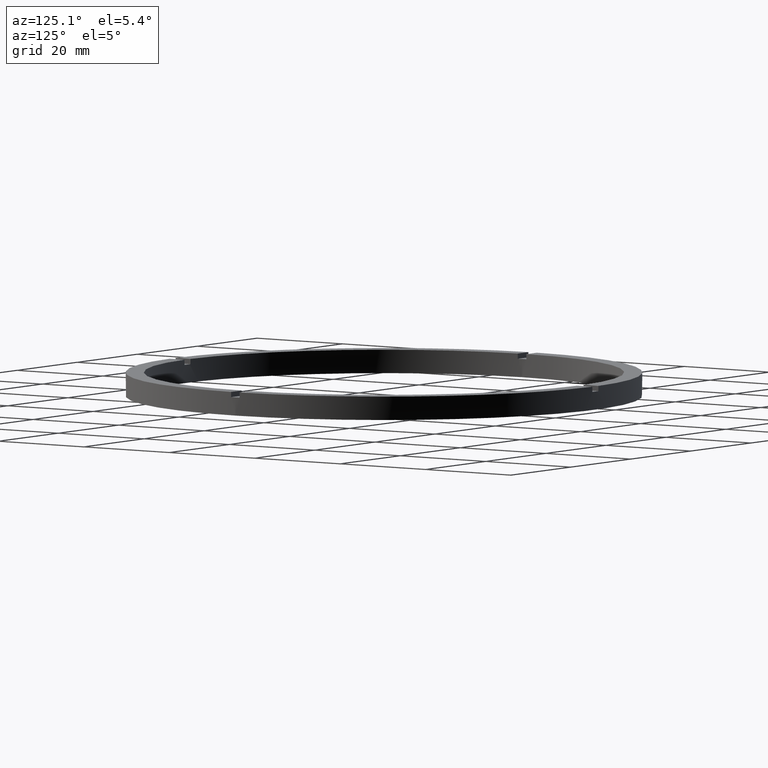
[diagram: clean part render]
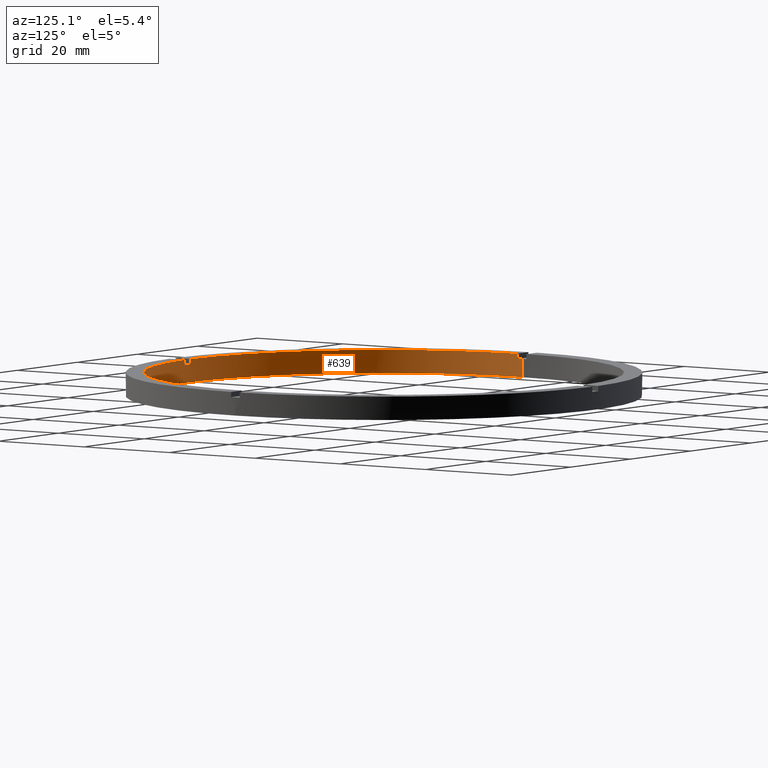
[diagram: same view with one face highlighted and labeled with its STEP entity id]
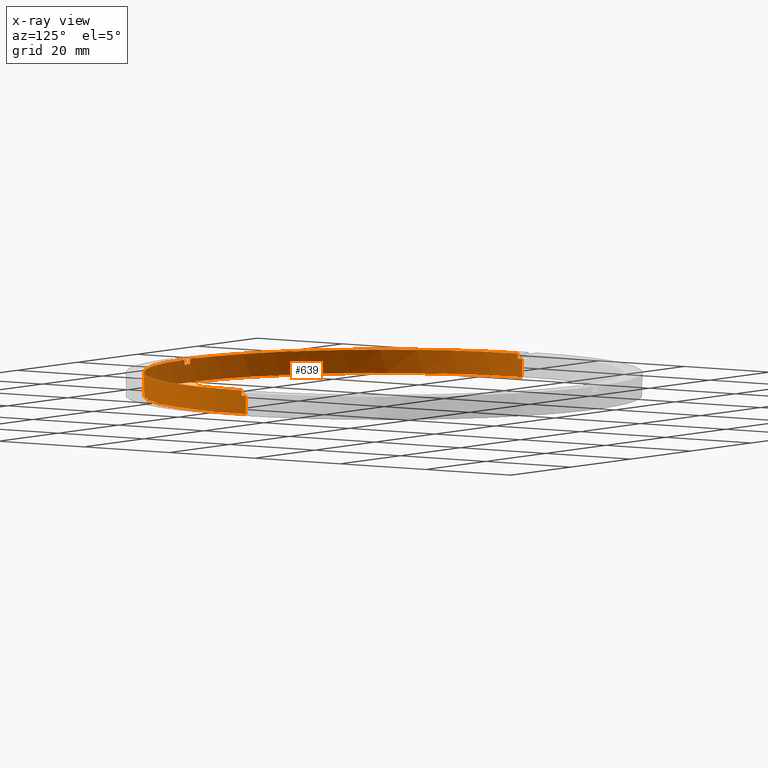
[diagram: x-ray of the same camera — body ghosted, the highlighted face saturated]
A machine part, auxiliary view. The second image highlights one B-rep face of the part: STEP entity #639.
The next image is the same camera in x-ray: the body ghosted, the highlighted face saturated — about 0% of this face is hidden behind the body in this view.
In plain terms, the highlighted cylindrical surface (partial cylindrical patch) has radius 46 mm, axis along (-0, -0, -1).
Its self-contained STEP definition (entity closure, byte-faithful):
#10 = ORIENTED_EDGE ( 'NONE', *, *, #93, .T. ) ;
#11 = CARTESIAN_POINT ( 'NONE',  ( 0.9999999999998425704, -45.98912915026767934, 4.500000000000000000 ) ) ;
#12 = ORIENTED_EDGE ( 'NONE', *, *, #126, .F. ) ;
#33 = ORIENTED_EDGE ( 'NONE', *, *, #410, .F. ) ;
#36 = CIRCLE ( 'NONE', #434, 46.00000000000000000 ) ;
#38 = LINE ( 'NONE', #406, #581 ) ;
#58 = FACE_OUTER_BOUND ( 'NONE', #261, .T. ) ;
#76 = CARTESIAN_POINT ( 'NONE',  ( 0.000000000000000000, 0.000000000000000000, 3.499999999999999556 ) ) ;
#82 = CARTESIAN_POINT ( 'NONE',  ( -46.00000000000000000, 0.000000000000000000, 3.499999999999999556 ) ) ;
#84 = CARTESIAN_POINT ( 'NONE',  ( 45.98912915026767223, -1.000000000000155431, 4.500000000000000000 ) ) ;
#85 = CARTESIAN_POINT ( 'NONE',  ( -45.98912915026767223, -1.000000000000030420, 4.500000000000000000 ) ) ;
#90 = AXIS2_PLACEMENT_3D ( 'NONE', #221, #205, #676 ) ;
#93 = EDGE_CURVE ( 'NONE', #424, #163, #176, .T. ) ;
#99 = CARTESIAN_POINT ( 'NONE',  ( -1.000000000000157430, -45.98912915026767223, 4.500000000000000000 ) ) ;
#112 = DIRECTION ( 'NONE',  ( -0.000000000000000000, -0.000000000000000000, -1.000000000000000000 ) ) ;
#122 = CARTESIAN_POINT ( 'NONE',  ( 0.9999999999998425704, -45.98912915026767934, 3.499999999999999556 ) ) ;
#126 = EDGE_CURVE ( 'NONE', #303, #453, #725, .T. ) ;
#130 = DIRECTION ( 'NONE',  ( -0.000000000000000000, -0.000000000000000000, -1.000000000000000000 ) ) ;
#141 = DIRECTION ( 'NONE',  ( 0.000000000000000000, 0.000000000000000000, 1.000000000000000000 ) ) ;
#161 = CARTESIAN_POINT ( 'NONE',  ( -45.98912915026767223, -1.000000000000030420, 3.499999999999999556 ) ) ;
#163 = VERTEX_POINT ( 'NONE', #290 ) ;
#166 = VERTEX_POINT ( 'NONE', #199 ) ;
#173 = CARTESIAN_POINT ( 'NONE',  ( -45.98912915026767223, -1.000000000000030420, 4.500000000000000000 ) ) ;
#176 = CIRCLE ( 'NONE', #90, 46.00000000000000000 ) ;
#180 = DIRECTION ( 'NONE',  ( 0.000000000000000000, 0.000000000000000000, 1.000000000000000000 ) ) ;
#184 = DIRECTION ( 'NONE',  ( -0.000000000000000000, -0.000000000000000000, -1.000000000000000000 ) ) ;
#190 = VECTOR ( 'NONE', #184, 1000.000000000000000 ) ;
#191 = DIRECTION ( 'NONE',  ( 0.000000000000000000, 0.000000000000000000, 1.000000000000000000 ) ) ;
#194 = CARTESIAN_POINT ( 'NONE',  ( -46.00000000000000000, 0.000000000000000000, 0.000000000000000000 ) ) ;
#197 = EDGE_CURVE ( 'NONE', #546, #652, #414, .T. ) ;
#199 = CARTESIAN_POINT ( 'NONE',  ( 0.9999999999998425704, -45.98912915026767934, 4.500000000000000000 ) ) ;
#200 = LINE ( 'NONE', #99, #204 ) ;
#204 = VECTOR ( 'NONE', #141, 1000.000000000000000 ) ;
#205 = DIRECTION ( 'NONE',  ( 0.000000000000000000, 0.000000000000000000, 1.000000000000000000 ) ) ;
#215 = VECTOR ( 'NONE', #565, 1000.000000000000000 ) ;
#221 = CARTESIAN_POINT ( 'NONE',  ( 0.000000000000000000, 0.000000000000000000, 4.500000000000000000 ) ) ;
#223 = DIRECTION ( 'NONE',  ( -1.000000000000000000, 0.000000000000000000, 0.000000000000000000 ) ) ;
#227 = AXIS2_PLACEMENT_3D ( 'NONE', #746, #191, #352 ) ;
#228 = CARTESIAN_POINT ( 'NONE',  ( 0.000000000000000000, 0.000000000000000000, 4.500000000000000000 ) ) ;
#261 = EDGE_LOOP ( 'NONE', ( #277, #540, #12, #695, #497, #564, #10, #550, #306, #33, #566, #284 ) ) ;
#268 = VERTEX_POINT ( 'NONE', #471 ) ;
#277 = ORIENTED_EDGE ( 'NONE', *, *, #450, .T. ) ;
#284 = ORIENTED_EDGE ( 'NONE', *, *, #378, .F. ) ;
#286 = EDGE_CURVE ( 'NONE', #424, #652, #660, .T. ) ;
#290 = CARTESIAN_POINT ( 'NONE',  ( -1.000000000000157430, -45.98912915026767223, 4.500000000000000000 ) ) ;
#303 = VERTEX_POINT ( 'NONE', #194 ) ;
#306 = ORIENTED_EDGE ( 'NONE', *, *, #344, .T. ) ;
#307 = CARTESIAN_POINT ( 'NONE',  ( 0.000000000000000000, 0.000000000000000000, 4.500000000000000000 ) ) ;
#312 = DIRECTION ( 'NONE',  ( 0.000000000000000000, 0.000000000000000000, 1.000000000000000000 ) ) ;
#315 = DIRECTION ( 'NONE',  ( 1.000000000000000000, 0.000000000000000000, 0.000000000000000000 ) ) ;
#334 = CARTESIAN_POINT ( 'NONE',  ( 46.00000000000000000, 5.633375276077824704E-15, 3.499999999999999556 ) ) ;
#344 = EDGE_CURVE ( 'NONE', #689, #391, #707, .T. ) ;
#345 = CARTESIAN_POINT ( 'NONE',  ( 0.000000000000000000, 0.000000000000000000, 3.499999999999999556 ) ) ;
#348 = AXIS2_PLACEMENT_3D ( 'NONE', #764, #312, #315 ) ;
#352 = DIRECTION ( 'NONE',  ( 1.000000000000000000, 0.000000000000000000, 0.000000000000000000 ) ) ;
#360 = EDGE_CURVE ( 'NONE', #546, #303, #487, .T. ) ;
#368 = AXIS2_PLACEMENT_3D ( 'NONE', #345, #447, #501 ) ;
#375 = AXIS2_PLACEMENT_3D ( 'NONE', #76, #612, #606 ) ;
#378 = EDGE_CURVE ( 'NONE', #773, #268, #462, .T. ) ;
#391 = VERTEX_POINT ( 'NONE', #122 ) ;
#406 = CARTESIAN_POINT ( 'NONE',  ( 46.00000000000000000, 5.633375276077824704E-15, 4.500000000000000000 ) ) ;
#410 = EDGE_CURVE ( 'NONE', #166, #391, #717, .T. ) ;
#413 = VECTOR ( 'NONE', #130, 1000.000000000000000 ) ;
#414 = CIRCLE ( 'NONE', #375, 46.00000000000000000 ) ;
#424 = VERTEX_POINT ( 'NONE', #173 ) ;
#430 = CARTESIAN_POINT ( 'NONE',  ( 46.00000000000000000, 5.633375276077824704E-15, 0.000000000000000000 ) ) ;
#434 = AXIS2_PLACEMENT_3D ( 'NONE', #228, #647, #604 ) ;
#441 = CARTESIAN_POINT ( 'NONE',  ( -46.00000000000000000, 0.000000000000000000, 4.500000000000000000 ) ) ;
#447 = DIRECTION ( 'NONE',  ( -0.000000000000000000, 0.000000000000000000, 1.000000000000000000 ) ) ;
#450 = EDGE_CURVE ( 'NONE', #773, #542, #484, .T. ) ;
#453 = VERTEX_POINT ( 'NONE', #430 ) ;
#462 = LINE ( 'NONE', #84, #468 ) ;
#468 = VECTOR ( 'NONE', #180, 1000.000000000000000 ) ;
#471 = CARTESIAN_POINT ( 'NONE',  ( 45.98912915026767223, -1.000000000000155431, 4.500000000000000000 ) ) ;
#484 = CIRCLE ( 'NONE', #348, 46.00000000000000000 ) ;
#487 = LINE ( 'NONE', #441, #190 ) ;
#497 = ORIENTED_EDGE ( 'NONE', *, *, #197, .T. ) ;
#501 = DIRECTION ( 'NONE',  ( 1.000000000000000000, 0.000000000000000000, 0.000000000000000000 ) ) ;
#540 = ORIENTED_EDGE ( 'NONE', *, *, #657, .T. ) ;
#541 = AXIS2_PLACEMENT_3D ( 'NONE', #307, #112, #223 ) ;
#542 = VERTEX_POINT ( 'NONE', #334 ) ;
#546 = VERTEX_POINT ( 'NONE', #82 ) ;
#550 = ORIENTED_EDGE ( 'NONE', *, *, #601, .F. ) ;
#564 = ORIENTED_EDGE ( 'NONE', *, *, #286, .F. ) ;
#565 = DIRECTION ( 'NONE',  ( -0.000000000000000000, -0.000000000000000000, -1.000000000000000000 ) ) ;
#566 = ORIENTED_EDGE ( 'NONE', *, *, #679, .T. ) ;
#580 = CYLINDRICAL_SURFACE ( 'NONE', #541, 46.00000000000000000 ) ;
#581 = VECTOR ( 'NONE', #634, 1000.000000000000000 ) ;
#601 = EDGE_CURVE ( 'NONE', #689, #163, #200, .T. ) ;
#604 = DIRECTION ( 'NONE',  ( 1.000000000000000000, 0.000000000000000000, 0.000000000000000000 ) ) ;
#606 = DIRECTION ( 'NONE',  ( 1.000000000000000000, 0.000000000000000000, 0.000000000000000000 ) ) ;
#612 = DIRECTION ( 'NONE',  ( 0.000000000000000000, 0.000000000000000000, 1.000000000000000000 ) ) ;
#631 = CARTESIAN_POINT ( 'NONE',  ( 45.98912915026767223, -1.000000000000155431, 3.499999999999999556 ) ) ;
#634 = DIRECTION ( 'NONE',  ( -0.000000000000000000, -0.000000000000000000, -1.000000000000000000 ) ) ;
#639 = ADVANCED_FACE ( 'NONE', ( #58 ), #580, .F. ) ;
#647 = DIRECTION ( 'NONE',  ( 0.000000000000000000, 0.000000000000000000, 1.000000000000000000 ) ) ;
#652 = VERTEX_POINT ( 'NONE', #161 ) ;
#657 = EDGE_CURVE ( 'NONE', #542, #453, #38, .T. ) ;
#660 = LINE ( 'NONE', #85, #413 ) ;
#676 = DIRECTION ( 'NONE',  ( 1.000000000000000000, 0.000000000000000000, 0.000000000000000000 ) ) ;
#679 = EDGE_CURVE ( 'NONE', #166, #268, #36, .T. ) ;
#689 = VERTEX_POINT ( 'NONE', #772 ) ;
#695 = ORIENTED_EDGE ( 'NONE', *, *, #360, .F. ) ;
#707 = CIRCLE ( 'NONE', #368, 46.00000000000000000 ) ;
#717 = LINE ( 'NONE', #11, #215 ) ;
#725 = CIRCLE ( 'NONE', #227, 46.00000000000000000 ) ;
#746 = CARTESIAN_POINT ( 'NONE',  ( 0.000000000000000000, 0.000000000000000000, 0.000000000000000000 ) ) ;
#764 = CARTESIAN_POINT ( 'NONE',  ( 0.000000000000000000, 0.000000000000000000, 3.499999999999999556 ) ) ;
#772 = CARTESIAN_POINT ( 'NONE',  ( -1.000000000000157430, -45.98912915026767223, 3.499999999999999556 ) ) ;
#773 = VERTEX_POINT ( 'NONE', #631 ) ;